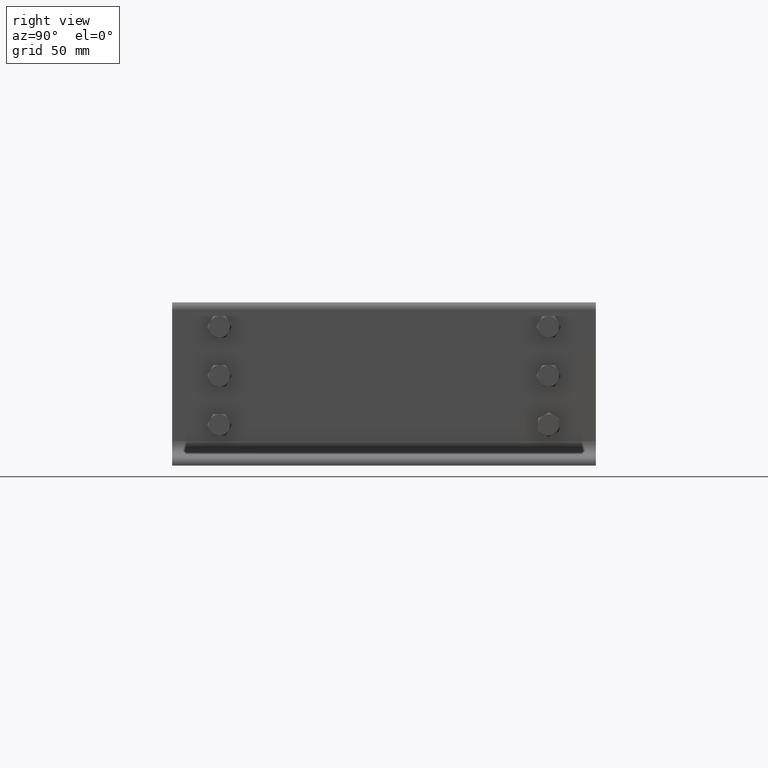
[diagram: clean part render]
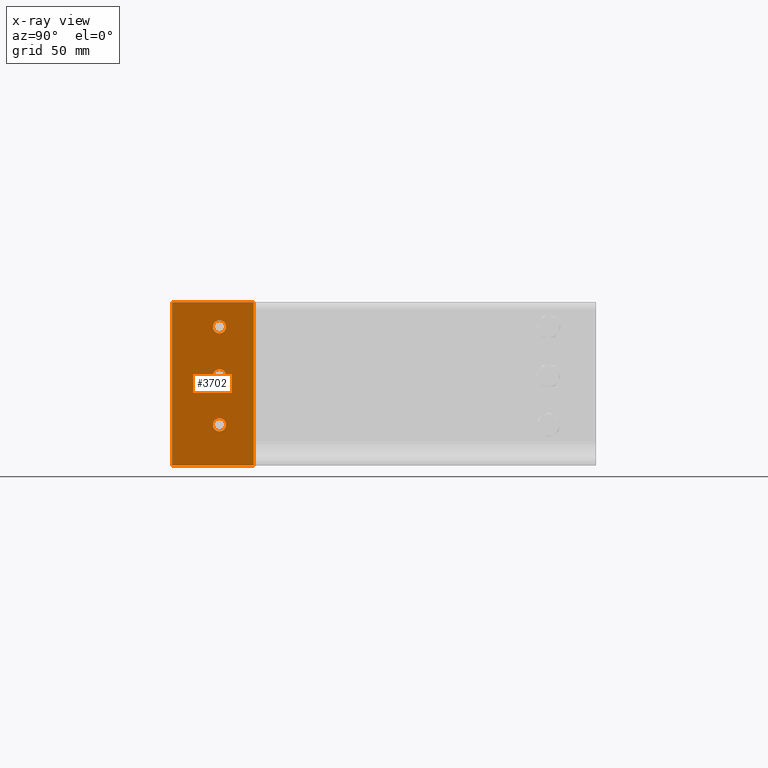
[diagram: x-ray — body ghosted, one internal face saturated and labeled with its STEP entity id]
A machine part, right view, then the same camera in x-ray: the body is ghosted and one INTERNAL B-rep face — a face not visible from any outside direction — is saturated and labeled: STEP entity #3702.
In plain terms, the highlighted planar face has unit normal (1, -0, -0).
Its self-contained STEP definition (entity closure, byte-faithful):
#3490=CARTESIAN_POINT('',(30.999999999999996,0.35,3.999999999999997));
#3491=VERTEX_POINT('',#3490);
#3492=CARTESIAN_POINT('',(34.999999999999993,0.350000000000001,3.999999999999997));
#3493=DIRECTION('',(0.0,-1.0,0.0));
#3494=DIRECTION('',(-1.0,0.0,0.0));
#3495=AXIS2_PLACEMENT_3D('',#3492,#3493,#3494);
#3496=CIRCLE('',#3495,4.0);
#3497=EDGE_CURVE('',#3491,#3491,#3496,.T.);
#3518=CARTESIAN_POINT('',(0.999999999999996,0.35,4.000000000000007));
#3519=VERTEX_POINT('',#3518);
#3520=CARTESIAN_POINT('',(4.999999999999996,0.350000000000001,4.000000000000007));
#3521=DIRECTION('',(0.0,-1.0,0.0));
#3522=DIRECTION('',(-1.0,0.0,0.0));
#3523=AXIS2_PLACEMENT_3D('',#3520,#3521,#3522);
#3524=CIRCLE('',#3523,4.0);
#3525=EDGE_CURVE('',#3519,#3519,#3524,.T.);
#3546=CARTESIAN_POINT('',(-29.000000000000004,0.35,4.000000000000016));
#3547=VERTEX_POINT('',#3546);
#3548=CARTESIAN_POINT('',(-25.000000000000004,0.350000000000001,4.000000000000016));
#3549=DIRECTION('',(0.0,-1.0,0.0));
#3550=DIRECTION('',(-1.0,0.0,0.0));
#3551=AXIS2_PLACEMENT_3D('',#3548,#3549,#3550);
#3552=CIRCLE('',#3551,4.0);
#3553=EDGE_CURVE('',#3547,#3547,#3552,.T.);
#3573=CARTESIAN_POINT('',(-50.0,0.35,25.000000000000028));
#3574=VERTEX_POINT('',#3573);
#3581=CARTESIAN_POINT('',(-50.0,0.35,-24.999999999999996));
#3582=VERTEX_POINT('',#3581);
#3583=CARTESIAN_POINT('',(-50.0,0.35,-24.999999999999986));
#3584=DIRECTION('',(0.0,0.0,1.0));
#3585=VECTOR('',#3584,50.000000000000014);
#3586=LINE('',#3583,#3585);
#3587=EDGE_CURVE('',#3582,#3574,#3586,.T.);
#3612=CARTESIAN_POINT('',(50.0,0.35,-24.999999999999996));
#3613=VERTEX_POINT('',#3612);
#3614=CARTESIAN_POINT('',(50.0,0.35,-24.999999999999996));
#3615=DIRECTION('',(-1.0,0.0,0.0));
#3616=VECTOR('',#3615,100.0);
#3617=LINE('',#3614,#3616);
#3618=EDGE_CURVE('',#3613,#3582,#3617,.T.);
#3643=CARTESIAN_POINT('',(50.0,0.35,24.999999999999996));
#3644=VERTEX_POINT('',#3643);
#3645=CARTESIAN_POINT('',(50.0,0.35,24.999999999999996));
#3646=DIRECTION('',(0.0,0.0,-1.0));
#3647=VECTOR('',#3646,49.999999999999993);
#3648=LINE('',#3645,#3647);
#3649=EDGE_CURVE('',#3644,#3613,#3648,.T.);
#3672=CARTESIAN_POINT('',(-50.0,0.35,25.000000000000028));
#3673=DIRECTION('',(1.0,0.0,0.0));
#3674=VECTOR('',#3673,100.0);
#3675=LINE('',#3672,#3674);
#3676=EDGE_CURVE('',#3574,#3644,#3675,.T.);
#3682=CARTESIAN_POINT('',(-3.552714E-015,0.35,7.105427E-015));
#3683=DIRECTION('',(0.0,1.0,0.0));
#3684=DIRECTION('',(0.0,0.0,1.0));
#3685=AXIS2_PLACEMENT_3D('',#3682,#3683,#3684);
#3686=PLANE('',#3685);
#3687=ORIENTED_EDGE('',*,*,#3676,.T.);
#3688=ORIENTED_EDGE('',*,*,#3649,.T.);
#3689=ORIENTED_EDGE('',*,*,#3618,.T.);
#3690=ORIENTED_EDGE('',*,*,#3587,.T.);
#3691=EDGE_LOOP('',(#3687,#3688,#3689,#3690));
#3692=FACE_OUTER_BOUND('',#3691,.T.);
#3693=ORIENTED_EDGE('',*,*,#3497,.T.);
#3694=EDGE_LOOP('',(#3693));
#3695=FACE_BOUND('',#3694,.T.);
#3696=ORIENTED_EDGE('',*,*,#3525,.T.);
#3697=EDGE_LOOP('',(#3696));
#3698=FACE_BOUND('',#3697,.T.);
#3699=ORIENTED_EDGE('',*,*,#3553,.T.);
#3700=EDGE_LOOP('',(#3699));
#3701=FACE_BOUND('',#3700,.T.);
#3702=ADVANCED_FACE('',(#3692,#3695,#3698,#3701),#3686,.T.);